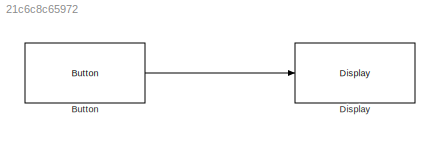
MODEL slx_21c6c8c65972
KIND model
CONFIG AbsTol = auto
CONFIG FixedStep = auto
CONFIG MaxStep = auto
CONFIG MinStep = auto
CONFIG RelTol = 1e-3
CONFIG SampleTimeConstraint = Unconstrained
CONFIG Solver = ode45
CONFIG SolverMode = Auto
CONFIG SolverName = ode45
CONFIG StartTime = 0.0
CONFIG StopTime = 10.0
BLOCK [Reference] Button  REF=legoev3lib/Button
  Ports = [0, 1]
  SourceBlock = legoev3lib/Button
  SourceType = LEGO MINDSTORMS EV3 Button
  buttonType = Left
  sampleTime = 0.1
BLOCK [Reference] Display  REF=legoev3lib/Display
  Ports = [1]
  SourceBlock = legoev3lib/Display
  SourceType = LEGO MINDSTORMS EV3 Display
  slcdFormat = Decimal
  slcdLine = 1
  slcdStr = It works
LINE Button:1 -> Display:1
